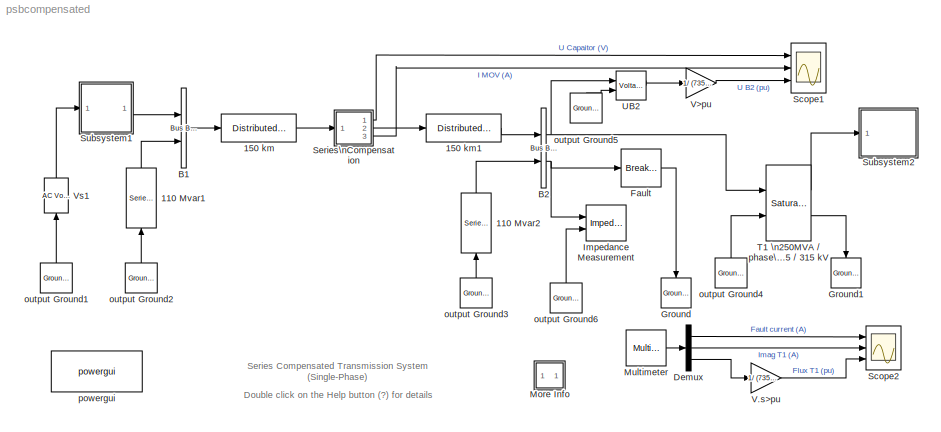
MODEL psbcompensated
KIND model
CONFIG InitFcn = powericon('psbinitsys',bdroot);
BLOCK [Reference] 110 Mvar1  REF=powerlib2/Elements/Series RLC Load
  PSBOutputType = 1
  Ports = [1, 1]
  SourceBlock = powerlib2/Elements/Series RLC Load
  SourceType = Series RLC Load
  Tag = PoWeRsYsTeMbLoCk
  a = 735000/sqrt(3)
  b = 60
  c = 110e6/300
  d = 110e6
  e = 0
  mesure = None
BLOCK [Reference] 110 Mvar2  REF=powerlib2/Elements/Series RLC Load
  PSBOutputType = 1
  Ports = [1, 1]
  SourceBlock = powerlib2/Elements/Series RLC Load
  SourceType = Series RLC Load
  Tag = PoWeRsYsTeMbLoCk
  a = 735000/sqrt(3)
  b = 60
  c = 110e6/300
  d = 110e6
  e = 0
  mesure = None
BLOCK [Reference] 150 km  REF=powerlib2/Elements/Distributed Parameters Line
  PSBOutputType = 111111111111111111111111111111
  Ports = [1, 1]
  SourceBlock = powerlib2/Elements/Distributed Parameters Line
  SourceType = Distributed Parameters Line
  Tag = PoWeRsYsTeMbLoCk
  c = 13.41e-09
  f = 60
  l = 0.8674e-03
  lgt = 150
  mesure = None
  n = 1
  r = 0.011
  x1 = [0 0 0 0; 0.0001244 0 0 0; 0.0002488 0 0 0; 0.0003733 0 0 0; 0.0004977 0 0 0; 0.0006221 0 0 0]
  x2 = [0 0 0 0; 0.0001244 0 0 0; 0.0002488 0 0 0; 0.0003733 0 0 0; 0.0004977 0 0 0; 0.0006221 0 0 0]
  x3 = [0 0 0 0; 0.0001244 0 0 0; 0.0002488 0 0 0; 0.0003733 0 0 0; 0.0004977 0 0 0; 0.0006221 0 0 0]
  x4 = [0 0 0 0; 0.0001244 0 0 0; 0.0002488 0 0 0; 0.0003733 0 0 0; 0.0004977 0 0 0; 0.0006221 0 0 0]
  x5 = 0
BLOCK [Reference] 150 km1  REF=powerlib2/Elements/Distributed Parameters Line
  PSBOutputType = 111111111111111111111111111111
  Ports = [1, 1]
  SourceBlock = powerlib2/Elements/Distributed Parameters Line
  SourceType = Distributed Parameters Line
  Tag = PoWeRsYsTeMbLoCk
  c = 13.41e-09
  f = 60
  l = 0.8674e-03
  lgt = 150
  mesure = None
  n = 1
  r = 0.011
  x1 = [0 0 0 0; 0.0001244 0 0 0; 0.0002488 0 0 0; 0.0003733 0 0 0; 0.0004977 0 0 0; 0.0006221 0 0 0]
  x2 = [0 0 0 0; 0.0001244 0 0 0; 0.0002488 0 0 0; 0.0003733 0 0 0; 0.0004977 0 0 0; 0.0006221 0 0 0]
  x3 = [0 0 0 0; 0.0001244 0 0 0; 0.0002488 0 0 0; 0.0003733 0 0 0; 0.0004977 0 0 0; 0.0006221 0 0 0]
  x4 = [0 0 0 0; 0.0001244 0 0 0; 0.0002488 0 0 0; 0.0003733 0 0 0; 0.0004977 0 0 0; 0.0006221 0 0 0]
  x5 = 0
BLOCK [Reference] B1  REF=powerlib2/Connectors/Bus Bar (vert)
  PSBOutputType = 11111111111111111111111111111111111111111111111111111111111111111111111111111111111111111
  Ports = [2, 1]
  SourceBlock = powerlib2/Connectors/Bus Bar (vert)
  SourceType = Bus Bar
  Tag = PoWeRsYsTeMbLoCk
  entrees = 2
  sorties = 1
BLOCK [Reference] B2  REF=powerlib2/Connectors/Bus Bar (vert)
  PSBOutputType = 11111111111111111111111111111111111111111111111111111111111111111111111111111111111111111
  Ports = [2, 2]
  SourceBlock = powerlib2/Connectors/Bus Bar (vert)
  SourceType = Bus Bar
  Tag = PoWeRsYsTeMbLoCk
  entrees = 2
  sorties = 2
BLOCK [Demux] Demux
  Outputs = 3
  Ports = [1, 3]
BLOCK [Reference] Fault  REF=powerlib2/Elements/Breaker
  PSBOutputType = 1
  Ports = [1, 1]
  SourceBlock = powerlib2/Elements/Breaker
  SourceType = Breaker
  Tag = PoWeRsYsTeMbLoCk
  Ts = 0
  a = 0.01
  c = 0
  comext = off
  cs = 0
  mesure = Branch current
  rs = inf
  times = [ 3/60  9/60 ]
BLOCK [Reference] Ground  REF=powerlib2/Connectors/Ground (input)
  Ports = [1]
  SourceBlock = powerlib2/Connectors/Ground (input)
  SourceType = Ground
  Tag = PoWeRsYsTeMbLoCk
BLOCK [Reference] Ground1  REF=powerlib2/Connectors/Ground (input)
  Ports = [1]
  SourceBlock = powerlib2/Connectors/Ground (input)
  SourceType = Ground
  Tag = PoWeRsYsTeMbLoCk
BLOCK [Reference] Impedance Measurement  REF=powerlib2/Measurements/Impedance Measurement
  Ports = [2]
  SourceBlock = powerlib2/Measurements/Impedance Measurement
  SourceType = Impedance Measurement
  Tag = PoWeRsYsTeMbLoCk
  kz = 1
BLOCK [SubSystem] More Info
  MaskDisplay = disp('?')
  MaskIconFrame = on
  MaskIconOpaque = on
  MaskIconRotate = none
  MaskIconUnits = autoscale
  MinAlgLoopOccurrences = off
  Ports = []
  RTWSystemCode = Auto
  TreatAsAtomicUnit = off
BLOCK [Reference] Multimeter  REF=powerlib2/Measurements/Multimeter
  AxesSetting = [0,0.1,-100,100]
  Display = 0
  Gain = [1 1 1]
  L = 3
  OutputType = Magnitude
  PSBOutputType = 1
  PSBequivalent = 0
  PhasorSimulation = off
  Ports = [0, 1]
  SavedBlockNames = {}
  SourceBlock = powerlib2/Measurements/Multimeter
  SourceType = MultimeterPSB
  Tag = PoWeRsYsTeMmEaSuReMeNt
  sel = [1 2 3]
  yselected = {'Ib: Fault','Imag: T1  250MVA // phase  735 // 315 kV','Flux: T1  250MVA // phase  735 // 315 kV'};
BLOCK [Scope] Scope1
  DataFormat = Array
  DeleteFcn = simscope BlockIsBeingDestroyed
  LimitDataPoints = off
  MaxDataPoints = 100000000
  NumInputPorts = 3
  Ports = [3]
  PostSaveFcn = simscope Save
  TimeRange = 0.4
  YMax = 300000~7500~1.5
  YMin = -300000~-7500~-1.5
BLOCK [Scope] Scope2
  DataFormat = Array
  DeleteFcn = simscope BlockIsBeingDestroyed
  LimitDataPoints = off
  MaxDataPoints = 100000000
  NumInputPorts = 3
  Ports = [3]
  PostSaveFcn = simscope Save
  TimeRange = 0.4
  YMax = 10000~1000~2
  YMin = -10000~-2000~-2
  ZoomMode = xonly
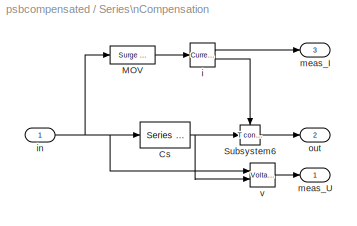
BLOCK [SubSystem] Series\nCompensation
  MaskDisplay = plot(0,0,100,100,[10 40],[50 50], [40 40],[40 60],[60 60],[40 60], [60 90],[50 50])
  MaskIconFrame = on
  MaskIconOpaque = on
  MaskIconRotate = none
  MaskIconUnits = autoscale
  MinAlgLoopOccurrences = off
  Ports = [1, 3]
  RTWSystemCode = Auto
  TreatAsAtomicUnit = off
BLOCK [Reference] Series\nCompensation/Cs  REF=powerlib2/Elements/Series RLC Branch
  PSBOutputType = 1
  Ports = [1, 1]
  SourceBlock = powerlib2/Elements/Series RLC Branch
  SourceType = Series RLC Branch
  Tag = PoWeRsYsTeMbLoCk
  a = 0
  b = 0
  c = 67.6e-6
  mesure = None
BLOCK [Reference] Series\nCompensation/MOV  REF=powerlib2/Elements/Surge Arrester
  PSBOutputType = 1
  Ports = [1, 1]
  SourceBlock = powerlib2/Elements/Surge Arrester
  SourceType = Surge Arrester
  Tag = PoWeRsYsTeMbLoCk
  mesure = None
  x1 = 277e+03
  x2 = 30
  x3 = 500
  x4 = [.955 50]
  x5 = [1.0 25]
  x6 = [.9915 16.5]
BLOCK [Reference] Series\nCompensation/Subsystem6  REF=powerlib2/Connectors/T connector
  PSBOutputType = 1
  Ports = [1, 1, 1]
  SourceBlock = powerlib2/Connectors/T connector
  SourceType = Bus Bar
  Tag = PoWeRsYsTeMbLoCk
BLOCK [Reference] Series\nCompensation/i  REF=powerlib2/Measurements/Current Measurement
  OutputType = Magnitude
  PSBOutputType = 01
  PSBequivalent = 0
  PhasorSimulation = off
  Ports = [1, 2]
  SourceBlock = powerlib2/Measurements/Current Measurement
  SourceType = Current Measurement
  Tag = PoWeRsYsTeMmEaSuReMeNt
BLOCK [Inport] Series\nCompensation/in
  IconDisplay = Port number
  LatchInput = off
  Port = 1
BLOCK [Outport] Series\nCompensation/meas_I
  BusOutputAsStruct = off
  IconDisplay = Port number
  InitialOutput = 0
  Port = 3
BLOCK [Outport] Series\nCompensation/meas_U
  BusOutputAsStruct = off
  IconDisplay = Port number
  InitialOutput = 0
BLOCK [Outport] Series\nCompensation/out
  BusOutputAsStruct = off
  IconDisplay = Port number
  InitialOutput = 0
  Port = 2
BLOCK [Reference] Series\nCompensation/v  REF=powerlib2/Measurements/Voltage Measurement
  OutputType = Magnitude
  PSBOutputType = 0
  PSBequivalent = 0
  PhasorSimulation = off
  Ports = [2, 1]
  SourceBlock = powerlib2/Measurements/Voltage Measurement
  SourceType = Voltage Measurement
  Tag = PoWeRsYsTeMmEaSuReMeNt
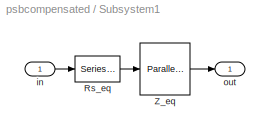
BLOCK [SubSystem] Subsystem1
  MaskDisplay = disp('735 kV\\nEquivalent')
  MaskIconFrame = on
  MaskIconOpaque = on
  MaskIconRotate = none
  MaskIconUnits = autoscale
  MinAlgLoopOccurrences = off
  Ports = [1, 1]
  RTWSystemCode = Auto
  TreatAsAtomicUnit = off
BLOCK [Reference] Subsystem1/Rs_eq  REF=powerlib2/Elements/Series RLC Branch
  PSBOutputType = 1
  Ports = [1, 1]
  SourceBlock = powerlib2/Elements/Series RLC Branch
  SourceType = Series RLC Branch
  Tag = PoWeRsYsTeMbLoCk
  a = 2
  b = 0
  c = inf
  mesure = None
BLOCK [Reference] Subsystem1/Z_eq  REF=powerlib2/Elements/Parallel RLC Branch
  PSBOutputType = 1
  Ports = [1, 1]
  SourceBlock = powerlib2/Elements/Parallel RLC Branch
  SourceType = Parallel RLC Branch
  Tag = PoWeRsYsTeMbLoCk
  a = 180.1
  b = .026525
  c = 117.84e-06
  mesure = None
BLOCK [Inport] Subsystem1/in
  IconDisplay = Port number
  LatchInput = off
  Port = 1
BLOCK [Outport] Subsystem1/out
  BusOutputAsStruct = off
  IconDisplay = Port number
  InitialOutput = 0
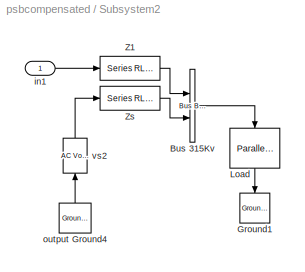
BLOCK [SubSystem] Subsystem2
  MaskDisplay = disp('315 kV\\nEquivalent')
  MaskIconFrame = on
  MaskIconOpaque = on
  MaskIconRotate = none
  MaskIconUnits = autoscale
  MinAlgLoopOccurrences = off
  Ports = [1]
  RTWSystemCode = Auto
  TreatAsAtomicUnit = off
BLOCK [Reference] Subsystem2/Bus 315Kv  REF=powerlib2/Connectors/Bus Bar (vert)
  PSBOutputType = 11111111111111111111111111111111111111111111111111111111111111111111111111111111111111111
  Ports = [2, 1]
  SourceBlock = powerlib2/Connectors/Bus Bar (vert)
  SourceType = Bus Bar
  Tag = PoWeRsYsTeMbLoCk
  entrees = 2
  sorties = 1
BLOCK [Reference] Subsystem2/Ground1  REF=powerlib2/Connectors/Ground (input)
  Ports = [1]
  SourceBlock = powerlib2/Connectors/Ground (input)
  SourceType = Ground
  Tag = PoWeRsYsTeMbLoCk
BLOCK [Reference] Subsystem2/Load  REF=powerlib2/Elements/Parallel RLC Load
  PSBOutputType = 1
  Ports = [1, 1]
  SourceBlock = powerlib2/Elements/Parallel RLC Load
  SourceType = Parallel RLC Load
  Tag = PoWeRsYsTeMbLoCk
  a = 315000/sqrt(3)
  b = 60
  c = 200e6
  d = 0
  e = 50e6
  mesure = None
BLOCK [Reference] Subsystem2/Z1  REF=powerlib2/Elements/Series RLC Branch
  PSBOutputType = 1
  Ports = [1, 1]
  SourceBlock = powerlib2/Elements/Series RLC Branch
  SourceType = Series RLC Branch
  Tag = PoWeRsYsTeMbLoCk
  a = 0.734
  b = 0.02085
  c = inf
  mesure = None
BLOCK [Reference] Subsystem2/Zs  REF=powerlib2/Elements/Series RLC Branch
  PSBOutputType = 1
  Ports = [1, 1]
  SourceBlock = powerlib2/Elements/Series RLC Branch
  SourceType = Series RLC Branch
  Tag = PoWeRsYsTeMbLoCk
  a = 11.0
  b = 0.2925
  c = inf
  mesure = None
BLOCK [Inport] Subsystem2/in1
  IconDisplay = Port number
  LatchInput = off
  Port = 1
BLOCK [Reference] Subsystem2/output Ground4  REF=powerlib2/Connectors/Ground (output)
  PSBOutputType = 1
  Ports = [0, 1]
  SourceBlock = powerlib2/Connectors/Ground (output)
  SourceType = Ground
  Tag = PoWeRsYsTeMbLoCk
BLOCK [Reference] Subsystem2/vs2  REF=powerlib2/Electrical\nSources/AC Voltage Source
  A = 315000/sqrt(3)*sqrt(2)
  F = 60
  P = 20
  PSBOutputType = 1
  Ports = [1, 1]
  SourceBlock = powerlib2/Electrical\nSources/AC Voltage Source
  SourceType = AC Voltage Source
  Tag = PoWeRsYsTeMbLoCk
  mesure = None
  stime = 0
BLOCK [Reference] T1 \n250MVA // phase\n 735 // 315 kV  REF=powerlib2/Elements/Saturable Transformer
  H = off
  Initialslope = +1
  PSBOutputType = 1111
  Ports = [2, 2]
  SourceBlock = powerlib2/Elements/Saturable Transformer
  SourceType = Saturable Transformer
  Tag = PoWeRsYsTeMbLoCk
  a = [750e6/3,60]
  b = [735000/sqrt(3), 0.001 ,0.15]
  c = [315000/sqrt(3), 0.001,0]
  d = [315000/sqrt(3), 0.001,0]
  e = [0 0 ; 0.0012 1.2; 1.0 1.45 ]
  f = [1000]
  matfile = 'hysteresis'
  mesure = Flux and magnetization current ( Imag )
  w3check = off
BLOCK [Reference] UB2  REF=powerlib2/Measurements/Voltage Measurement
  OutputType = Magnitude
  PSBOutputType = 0
  PSBequivalent = 1
  PhasorSimulation = off
  Ports = [2, 1]
  SourceBlock = powerlib2/Measurements/Voltage Measurement
  SourceType = Voltage Measurement
  Tag = PoWeRsYsTeMmEaSuReMeNt
BLOCK [Gain] V.s>pu
  Gain = 1/ (735e3/sqrt(3)*sqrt(2)/(2*pi*60))
BLOCK [Gain] V>pu
  Gain = 1/ (735e3/sqrt(3)*sqrt(2))
BLOCK [Reference] Vs1  REF=powerlib2/Electrical\nSources/AC Voltage Source
  A = 735000/sqrt(3)*sqrt(2)
  F = 60
  P = 0
  PSBOutputType = 1
  Ports = [1, 1]
  SourceBlock = powerlib2/Electrical\nSources/AC Voltage Source
  SourceType = AC Voltage Source
  Tag = PoWeRsYsTeMbLoCk
  mesure = None
  stime = 0
BLOCK [Reference] output Ground1  REF=powerlib2/Connectors/Ground (output)
  PSBOutputType = 1
  Ports = [0, 1]
  SourceBlock = powerlib2/Connectors/Ground (output)
  SourceType = Ground
  Tag = PoWeRsYsTeMbLoCk
BLOCK [Reference] output Ground2  REF=powerlib2/Connectors/Ground (output)
  PSBOutputType = 1
  Ports = [0, 1]
  SourceBlock = powerlib2/Connectors/Ground (output)
  SourceType = Ground
  Tag = PoWeRsYsTeMbLoCk
BLOCK [Reference] output Ground3  REF=powerlib2/Connectors/Ground (output)
  PSBOutputType = 1
  Ports = [0, 1]
  SourceBlock = powerlib2/Connectors/Ground (output)
  SourceType = Ground
  Tag = PoWeRsYsTeMbLoCk
BLOCK [Reference] output Ground4  REF=powerlib2/Connectors/Ground (output)
  PSBOutputType = 1
  Ports = [0, 1]
  SourceBlock = powerlib2/Connectors/Ground (output)
  SourceType = Ground
  Tag = PoWeRsYsTeMbLoCk
BLOCK [Reference] output Ground5  REF=powerlib2/Connectors/Ground (output)
  PSBOutputType = 1
  Ports = [0, 1]
  SourceBlock = powerlib2/Connectors/Ground (output)
  SourceType = Ground
  Tag = PoWeRsYsTeMbLoCk
BLOCK [Reference] output Ground6  REF=powerlib2/Connectors/Ground (output)
  PSBOutputType = 1
  Ports = [0, 1]
  SourceBlock = powerlib2/Connectors/Ground (output)
  SourceType = Ground
  Tag = PoWeRsYsTeMbLoCk
BLOCK [Reference] powergui  REF=powerlib2/powergui
  DisplayStyle = off
  Frange = 0:500
  FreqAxis = off
  MaxFrequency = 1000
  Ports = []
  RmsSteady = 1
  SourceBlock = powerlib2/powergui
  SourceType = PSB option menu block
  StartTime = 0.0
  Ts = 0
  Xlog = off
  Ylog = off
  ZoomFFT = on
  cycles = 2
  display = off
  echomessages = off
  frequency = 60
  frequencyindice = 1
  frequencyindicesteady = 1
  fundamental = 60
  methode = off
  save = off
  variable = ZData
ANNOTATION (root): Double click on the Help button (?) for details
ANNOTATION (root): Series Compensated Transmission System\n(Single-Phase)
ANNOTATION More Info: A 735 kV, 300 km line is used to transmit power from bus B1 (735 kV equivalent system) to bus B2 (315 kV equivalent). \nIn order to simplify, only one phase of the system has been represented. \n(A detailed simulation of a three-phase series compensated network is presented in the demos and explained in the case studies section of the user's manual.)\n\n In order to increase the transmission capac...<+619ch>
ANNOTATION More Info: Circuit Description
ANNOTATION More Info: Demonstration
ANNOTATION More Info: Frequency Analysis
ANNOTATION More Info: G. Sybille (Hydro-Quebec)
ANNOTATION More Info: In order to understand the transient behavior of this series-compensated network, a frequency analysis is first preformed by measuring the Impedance at bus B2.\nThis measurement is performed by the Impedance measurement block connected at bus B2. \nOpen the Powergui and in the Tools menu select 'Impedance vs Frequency Mesurement'. Click on Display to compute and display the impedance for the 0 - 5...<+434ch>
ANNOTATION More Info: Start the simulatiom and observe waveforms on the two Scopes.\nAt t = 3 cycles a line-to-ground fault is applied and the fault current reaches 10 kA (trace 1 of Scope2).\nDuring the fault, the MOV conducts at every half cycle (trace 2 of Scope1) and the voltage across the capacitor (trace 1 of Scope1) is limited to 263 kV.\nAt t = 9 cycles the fault is cleared. The 15 Hz mode is clearly seen on th...<+326ch>
ANNOTATION More Info: This demonstration ilustrates frequency-domain and time-domain analysis of\na series-compensated transmission system
ANNOTATION More Info: Time Domain Simulation- Fault at Bus B2
ANNOTATION More Info: You will now study the transient performance of this circuit when a 6-cycle fault is applied at bus B2.\nFault is simulated by the Breaker block. Switching times are defined in the Breaker block menu (closing at t = 3 cycles and opening at t = 9 cycles).
LINE 110 Mvar1:1 -> B1:2
LINE 110 Mvar2:1 -> B2:2
LINE 150 km1:1 -> B2:1
LINE 150 km:1 -> Series\nCompensation:1
LINE B1:1 -> 150 km:1
NET B2:1 -> T1 \n250MVA // phase\n 735 // 315 kV:1, UB2:1
NET B2:2 -> Fault:1, Impedance Measurement:1
LINE Demux:1 -> Scope2:1
LINE Demux:2 -> Scope2:2
LINE Demux:3 -> V.s>pu:1
LINE Fault:1 -> Ground:1
LINE Multimeter:1 -> Demux:1
NET Series\nCompensation/Cs:1 -> Series\nCompensation/Subsystem6:1, Series\nCompensation/v:2
LINE Series\nCompensation/MOV:1 -> Series\nCompensation/i:1
LINE Series\nCompensation/Subsystem6:1 -> Series\nCompensation/out:1
LINE Series\nCompensation/i:1 -> Series\nCompensation/meas_I:1
LINE Series\nCompensation/i:2 -> Series\nCompensation/Subsystem6:enable
NET Series\nCompensation/in:1 -> Series\nCompensation/Cs:1, Series\nCompensation/MOV:1, Series\nCompensation/v:1
LINE Series\nCompensation/v:1 -> Series\nCompensation/meas_U:1
LINE Series\nCompensation:1 -> Scope1:1
LINE Series\nCompensation:2 -> 150 km1:1
LINE Series\nCompensation:3 -> Scope1:2
LINE Subsystem1/Rs_eq:1 -> Subsystem1/Z_eq:1
LINE Subsystem1/Z_eq:1 -> Subsystem1/out:1
LINE Subsystem1/in:1 -> Subsystem1/Rs_eq:1
LINE Subsystem1:1 -> B1:1
LINE Subsystem2/Bus 315Kv:1 -> Subsystem2/Load:1
LINE Subsystem2/Load:1 -> Subsystem2/Ground1:1
LINE Subsystem2/Z1:1 -> Subsystem2/Bus 315Kv:1
LINE Subsystem2/Zs:1 -> Subsystem2/Bus 315Kv:2
LINE Subsystem2/in1:1 -> Subsystem2/Z1:1
LINE Subsystem2/output Ground4:1 -> Subsystem2/vs2:1
LINE Subsystem2/vs2:1 -> Subsystem2/Zs:1
LINE T1 \n250MVA // phase\n 735 // 315 kV:1 -> Subsystem2:1
LINE T1 \n250MVA // phase\n 735 // 315 kV:2 -> Ground1:1
LINE UB2:1 -> V>pu:1
LINE V.s>pu:1 -> Scope2:3
LINE V>pu:1 -> Scope1:3
LINE Vs1:1 -> Subsystem1:1
LINE output Ground1:1 -> Vs1:1
LINE output Ground2:1 -> 110 Mvar1:1
LINE output Ground3:1 -> 110 Mvar2:1
LINE output Ground4:1 -> T1 \n250MVA // phase\n 735 // 315 kV:2
LINE output Ground5:1 -> UB2:2
LINE output Ground6:1 -> Impedance Measurement:2
note: NET lines group one-source signal fan-out (src -> all destinations, sorted); 1:1 wires keep LINE
